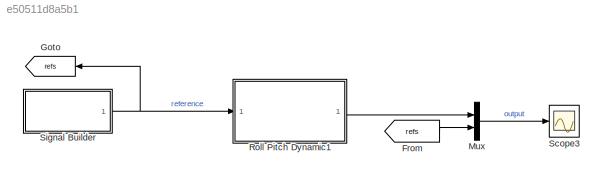
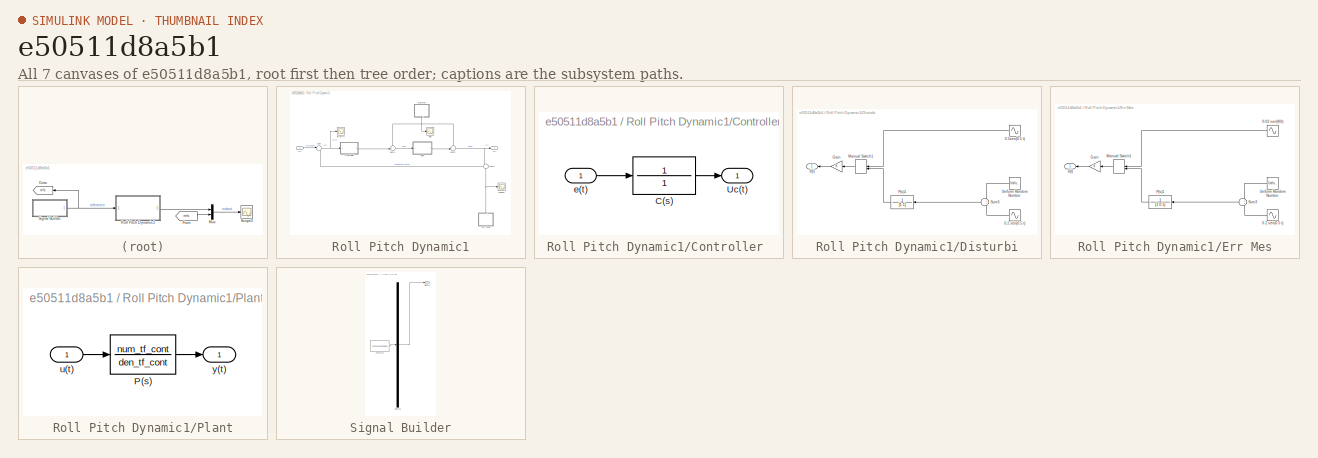
[diagram: thumbnail index - all 7 canvases of the model, root first then tree order]
MODEL slx_e50511d8a5b1
KIND model
BLOCK [From] From
  GotoTag = refs
BLOCK [Goto] Goto
  GotoTag = refs
BLOCK [Mux] Mux
  DisplayOption = bar
  Inputs = 2
  Ports = [2, 1]
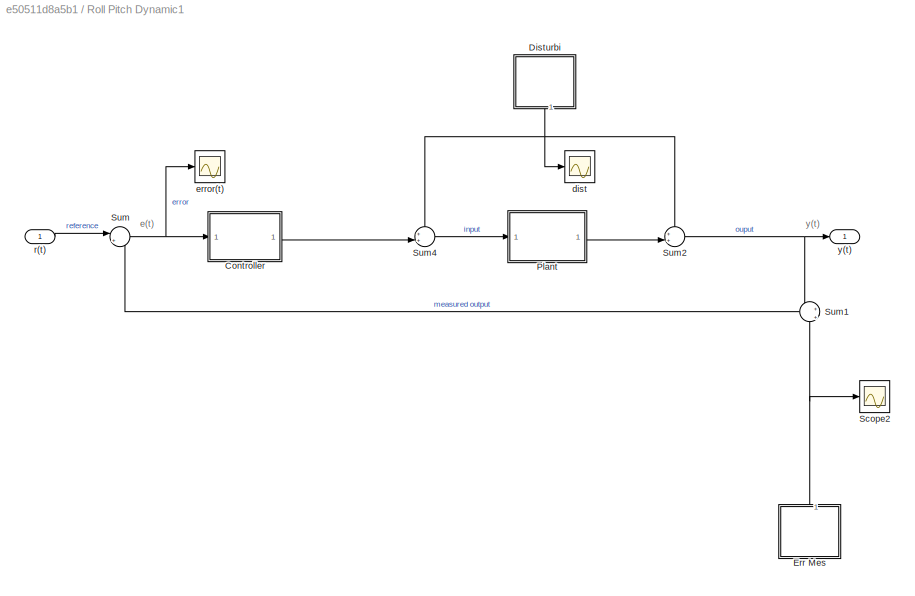
BLOCK [SubSystem] Roll Pitch Dynamic1
  Ports = [1, 1]
  RequestExecContextInheritance = off
BLOCK [SubSystem] Roll Pitch Dynamic1/Controller 
  Ports = [1, 1]
  RequestExecContextInheritance = off
BLOCK [TransferFcn] Roll Pitch Dynamic1/Controller /C(s) 
  Denominator = 1
  Numerator = 1
BLOCK [Outport] Roll Pitch Dynamic1/Controller /Uc(t)
  IconDisplay = Port number
BLOCK [Inport] Roll Pitch Dynamic1/Controller /e(t)
  IconDisplay = Port number
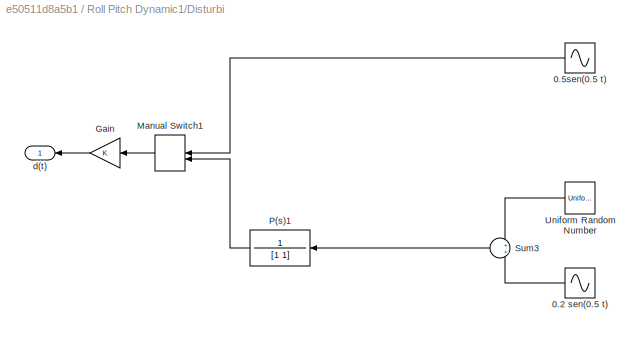
BLOCK [SubSystem] Roll Pitch Dynamic1/Disturbi
  Ports = [0, 1]
  RequestExecContextInheritance = off
BLOCK [Outport] Roll Pitch Dynamic1/Disturbi/  d(t)
  IconDisplay = Port number
BLOCK [Sin] Roll Pitch Dynamic1/Disturbi/0.2 sen(0.5 t)
  Amplitude = 0.2
  Frequency = 0.4
  Phase = 1
  Ports = [0, 1]
  SampleTime = 0
BLOCK [Sin] Roll Pitch Dynamic1/Disturbi/0.5sen(0.5 t)
  Amplitude = 0.5
  Frequency = 0.5
  Phase = 1
  Ports = [0, 1]
  SampleTime = 0
BLOCK [Gain] Roll Pitch Dynamic1/Disturbi/Gain
  OutDataTypeStr = Inherit: Inherit via internal rule
  ParamDataTypeStr = Inherit: Inherit via internal rule
  SaturateOnIntegerOverflow = off
BLOCK [ManualSwitch] Roll Pitch Dynamic1/Disturbi/Manual Switch1
  CurrentSetting = 0
BLOCK [TransferFcn] Roll Pitch Dynamic1/Disturbi/P(s)1
  Denominator = [1 1]
  Numerator = 1
BLOCK [Sum] Roll Pitch Dynamic1/Disturbi/Sum3
  IconShape = round
  InputSameDT = off
  OutDataTypeStr = Inherit: Inherit via internal rule
  Ports = [2, 1]
  SaturateOnIntegerOverflow = off
BLOCK [UniformRandomNumber] Roll Pitch Dynamic1/Disturbi/Uniform Random Number
  Maximum = 0.5
  Minimum = -0.5
  SampleTime = 0.1
BLOCK [SubSystem] Roll Pitch Dynamic1/Err Mes
  Ports = [0, 1]
  RequestExecContextInheritance = off
BLOCK [Outport] Roll Pitch Dynamic1/Err Mes/  d(t)
  IconDisplay = Port number
BLOCK [Sin] Roll Pitch Dynamic1/Err Mes/0.03 sen(80t)
  Amplitude = 0.003
  Frequency = 80
  Phase = 1
  Ports = [0, 1]
  SampleTime = 0
BLOCK [Sin] Roll Pitch Dynamic1/Err Mes/0.2 sen(0.5 t)
  Amplitude = 0.02
  Frequency = 50
  Phase = 1
  Ports = [0, 1]
  SampleTime = 0
BLOCK [Gain] Roll Pitch Dynamic1/Err Mes/Gain
  OutDataTypeStr = Inherit: Inherit via internal rule
  ParamDataTypeStr = Inherit: Inherit via internal rule
  SaturateOnIntegerOverflow = off
BLOCK [ManualSwitch] Roll Pitch Dynamic1/Err Mes/Manual Switch1
  CurrentSetting = 0
BLOCK [TransferFcn] Roll Pitch Dynamic1/Err Mes/P(s)1
  Denominator = [1 0.1]
  Numerator = 1
BLOCK [Sum] Roll Pitch Dynamic1/Err Mes/Sum3
  IconShape = round
  InputSameDT = off
  OutDataTypeStr = Inherit: Inherit via internal rule
  Ports = [2, 1]
  SaturateOnIntegerOverflow = off
BLOCK [UniformRandomNumber] Roll Pitch Dynamic1/Err Mes/Uniform Random Number
  Maximum = 0.05
  Minimum = -0.05
  SampleTime = 0.1
BLOCK [SubSystem] Roll Pitch Dynamic1/Plant
  Ports = [1, 1]
  RequestExecContextInheritance = off
BLOCK [TransferFcn] Roll Pitch Dynamic1/Plant/P(s)
  ContinuousStateAttributes = 'phi'
  Denominator = den_tf_cont
  Numerator = num_tf_cont
BLOCK [Inport] Roll Pitch Dynamic1/Plant/u(t)
  IconDisplay = Port number
BLOCK [Outport] Roll Pitch Dynamic1/Plant/y(t)
  IconDisplay = Port number
BLOCK [Scope] Roll Pitch Dynamic1/Scope2
  DataFormat = StructureWithTime
  Floating = off
  LimitDataPoints = off
  NumInputPorts = 1
  Ports = [1]
  SampleTime = 0
  SaveName = ScopeData2
  ShowLegends = off
BLOCK [Sum] Roll Pitch Dynamic1/Sum
  IconShape = round
  InputSameDT = off
  Inputs = |+-
  OutDataTypeStr = Inherit: Inherit via internal rule
  Ports = [2, 1]
  SaturateOnIntegerOverflow = off
BLOCK [Sum] Roll Pitch Dynamic1/Sum1
  IconShape = round
  InputSameDT = off
  Inputs = +|+
  OutDataTypeStr = Inherit: Inherit via internal rule
  Ports = [2, 1]
  SaturateOnIntegerOverflow = off
BLOCK [Sum] Roll Pitch Dynamic1/Sum2
  IconShape = round
  InputSameDT = off
  Inputs = ++|
  OutDataTypeStr = Inherit: Inherit via internal rule
  Ports = [2, 1]
  SaturateOnIntegerOverflow = off
BLOCK [Sum] Roll Pitch Dynamic1/Sum4
  IconShape = round
  InputSameDT = off
  Inputs = ++|
  OutDataTypeStr = Inherit: Inherit via internal rule
  Ports = [2, 1]
  SaturateOnIntegerOverflow = off
BLOCK [Scope] Roll Pitch Dynamic1/dist
  DataFormat = StructureWithTime
  Floating = off
  LimitDataPoints = off
  NumInputPorts = 1
  Ports = [1]
  SampleTime = 0
  SaveName = ScopeData1
  ShowLegends = off
BLOCK [Scope] Roll Pitch Dynamic1/error(t)
  DataFormat = StructureWithTime
  Floating = off
  NumInputPorts = 1
  Ports = [1]
  SampleTime = 0
  SaveName = ScopeData4
  ShowLegends = off
BLOCK [Inport] Roll Pitch Dynamic1/r(t)
  IconDisplay = Port number
BLOCK [Outport] Roll Pitch Dynamic1/y(t)
  IconDisplay = Port number
BLOCK [Scope] Scope3
  DataFormat = StructureWithTime
  Floating = off
  LimitDataPoints = off
  NumInputPorts = 1
  Ports = [1]
  SampleTime = 0
  ShowLegends = off
  ZoomMode = xonly
BLOCK [SubSystem] Signal Builder
  ClipboardFcn = sigbuilder_block('clipboard');
  CloseFcn = sigbuilder_block('close');
  ContinueFcn = sigbuilder_block('continue');
  CopyFcn = sigbuilder_block('copy');
  DeleteFcn = sigbuilder_block('delete');
  LoadFcn = sigbuilder_block('load');
  MaskHideContents = on
  ModelCloseFcn = sigbuilder_block('modelClose');
  NameChangeFcn = sigbuilder_block('namechange');
  OpenFcn = sigbuilder_block('open',[265.6 120.8 550.4 400 ]);
  PauseFcn = sigbuilder_block('pause');
  Ports = [0, 1]
  PreSaveFcn = sigbuilder_block('preSave');
  RequestExecContextInheritance = off
  StartFcn = sigbuilder_block('start');
  StopFcn = sigbuilder_block('stop');
  Tag = STV Subsys
BLOCK [Demux] Signal Builder/Demux
  Outputs = 1
  Ports = [1, 1]
  Tag = STV Demux
BLOCK [FromWorkspace] Signal Builder/FromWs
  SampleTime = 0
  Tag = STV FromWs
  VariableName = tuvar
  ZeroCross = on
BLOCK [Outport] Signal Builder/Signal 1
  IconDisplay = Port number
  Tag = STV Outport
ANNOTATION Roll Pitch Dynamic1: e(t)
ANNOTATION Roll Pitch Dynamic1: y(t)
LINE From:1 -> Mux:2
LINE Mux:1 -> Scope3:1
LINE Roll Pitch Dynamic1/Controller /C(s) :1 -> Roll Pitch Dynamic1/Controller /Uc(t):1
LINE Roll Pitch Dynamic1/Controller /e(t):1 -> Roll Pitch Dynamic1/Controller /C(s) :1
LINE Roll Pitch Dynamic1/Controller :1 -> Roll Pitch Dynamic1/Sum4:2
LINE Roll Pitch Dynamic1/Disturbi/0.2 sen(0.5 t):1 -> Roll Pitch Dynamic1/Disturbi/Sum3:2
LINE Roll Pitch Dynamic1/Disturbi/0.5sen(0.5 t):1 -> Roll Pitch Dynamic1/Disturbi/Manual Switch1:1
LINE Roll Pitch Dynamic1/Disturbi/Gain:1 -> Roll Pitch Dynamic1/Disturbi/  d(t):1
LINE Roll Pitch Dynamic1/Disturbi/Manual Switch1:1 -> Roll Pitch Dynamic1/Disturbi/Gain:1
LINE Roll Pitch Dynamic1/Disturbi/P(s)1:1 -> Roll Pitch Dynamic1/Disturbi/Manual Switch1:2
LINE Roll Pitch Dynamic1/Disturbi/Sum3:1 -> Roll Pitch Dynamic1/Disturbi/P(s)1:1
LINE Roll Pitch Dynamic1/Disturbi/Uniform Random Number:1 -> Roll Pitch Dynamic1/Disturbi/Sum3:1
NET Roll Pitch Dynamic1/Disturbi:1 -> Roll Pitch Dynamic1/Sum2:1, Roll Pitch Dynamic1/Sum4:1, Roll Pitch Dynamic1/dist:1
LINE Roll Pitch Dynamic1/Err Mes/0.03 sen(80t):1 -> Roll Pitch Dynamic1/Err Mes/Manual Switch1:1
LINE Roll Pitch Dynamic1/Err Mes/0.2 sen(0.5 t):1 -> Roll Pitch Dynamic1/Err Mes/Sum3:2
LINE Roll Pitch Dynamic1/Err Mes/Gain:1 -> Roll Pitch Dynamic1/Err Mes/  d(t):1
LINE Roll Pitch Dynamic1/Err Mes/Manual Switch1:1 -> Roll Pitch Dynamic1/Err Mes/Gain:1
LINE Roll Pitch Dynamic1/Err Mes/P(s)1:1 -> Roll Pitch Dynamic1/Err Mes/Manual Switch1:2
LINE Roll Pitch Dynamic1/Err Mes/Sum3:1 -> Roll Pitch Dynamic1/Err Mes/P(s)1:1
LINE Roll Pitch Dynamic1/Err Mes/Uniform Random Number:1 -> Roll Pitch Dynamic1/Err Mes/Sum3:1
NET Roll Pitch Dynamic1/Err Mes:1 -> Roll Pitch Dynamic1/Scope2:1, Roll Pitch Dynamic1/Sum1:2
LINE Roll Pitch Dynamic1/Plant/P(s):1 -> Roll Pitch Dynamic1/Plant/y(t):1
LINE Roll Pitch Dynamic1/Plant/u(t):1 -> Roll Pitch Dynamic1/Plant/P(s):1
LINE Roll Pitch Dynamic1/Plant:1 -> Roll Pitch Dynamic1/Sum2:2
LINE Roll Pitch Dynamic1/Sum1:1 -> Roll Pitch Dynamic1/Sum:2
NET Roll Pitch Dynamic1/Sum2:1 -> Roll Pitch Dynamic1/Sum1:1, Roll Pitch Dynamic1/y(t):1
LINE Roll Pitch Dynamic1/Sum4:1 -> Roll Pitch Dynamic1/Plant:1
NET Roll Pitch Dynamic1/Sum:1 -> Roll Pitch Dynamic1/Controller :1, Roll Pitch Dynamic1/error(t):1
LINE Roll Pitch Dynamic1/r(t):1 -> Roll Pitch Dynamic1/Sum:1
LINE Roll Pitch Dynamic1:1 -> Mux:1
NET Signal Builder:1 -> Goto:1, Roll Pitch Dynamic1:1
note: NET lines group one-source signal fan-out (src -> all destinations, sorted); 1:1 wires keep LINE
